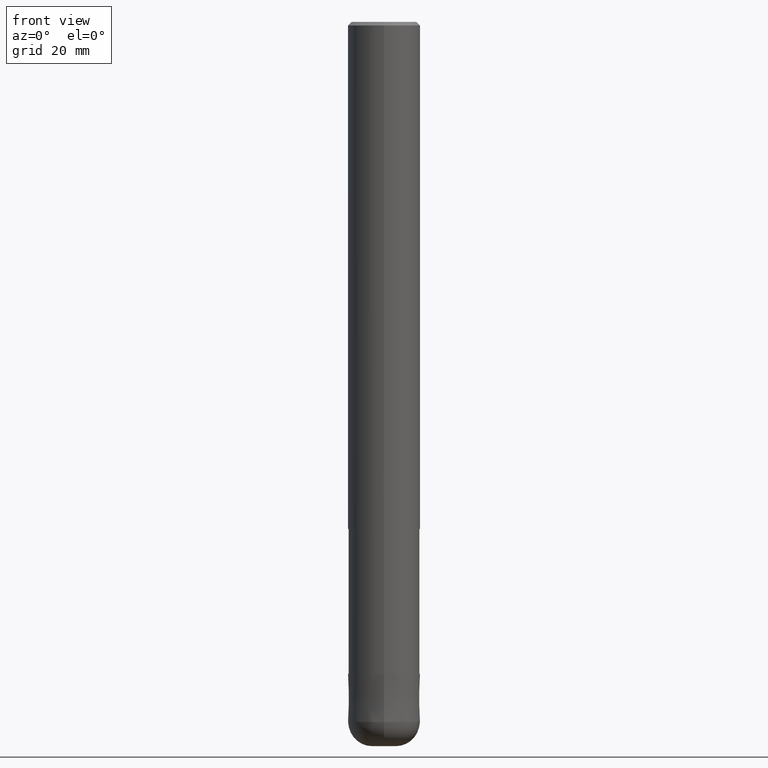
[diagram: clean part render]
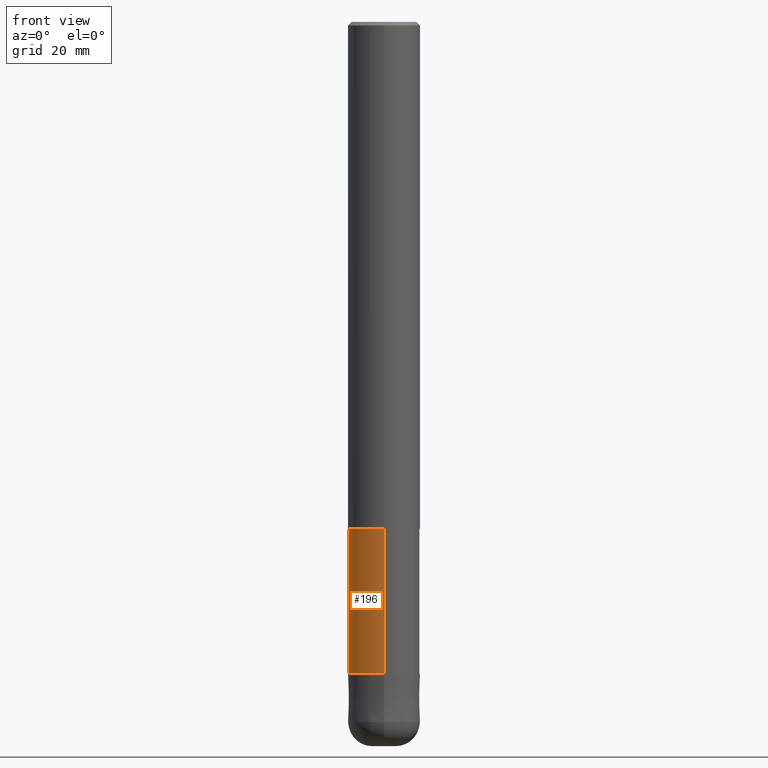
[diagram: same view with one face highlighted and labeled with its STEP entity id]
A machine part, front view. The second image highlights one B-rep face of the part: STEP entity #196.
In plain terms, the highlighted cylindrical surface (edge-blend (fillet) strip) has radius 5.91 mm, axis along (-0, -0, 1).
Its self-contained STEP definition (entity closure, byte-faithful):
#94=EDGE_CURVE('',#144,#208,#232,.T.);
#116=EDGE_CURVE('',#206,#174,#255,.T.);
#144=VERTEX_POINT('',#287);
#150=EDGE_CURVE('',#206,#144,#294,.T.);
#174=VERTEX_POINT('',#322);
#182=EDGE_CURVE('',#208,#174,#331,.T.);
#196=ADVANCED_FACE('',(#347),#348,.T.);
#206=VERTEX_POINT('',#359);
#208=VERTEX_POINT('',#361);
#232=CIRCLE('',#378,5.90995);
#255=CIRCLE('',#406,5.90995);
#287=CARTESIAN_POINT('',(7.23736232077256E-016,-5.90995,-84.0));
#294=LINE('',#455,#456);
#322=CARTESIAN_POINT('',(0.0,5.90995,-108.0));
#331=LINE('',#499,#500);
#347=FACE_OUTER_BOUND('',#520,.T.);
#348=CYLINDRICAL_SURFACE('',#521,5.90995);
#359=CARTESIAN_POINT('',(7.23736232077256E-016,-5.90995,-108.0));
#361=CARTESIAN_POINT('',(0.0,5.90995,-84.0));
#378=AXIS2_PLACEMENT_3D('',#546,#547,#548);
#406=AXIS2_PLACEMENT_3D('',#568,#569,#570);
#455=CARTESIAN_POINT('',(7.23736232077256E-016,-5.90995,-96.0));
#456=VECTOR('',#628,1.0);
#499=CARTESIAN_POINT('',(-7.23736232077256E-016,5.90995,-96.0));
#500=VECTOR('',#673,1.0);
#520=EDGE_LOOP('',(#696,#697,#698,#699));
#521=AXIS2_PLACEMENT_3D('',#700,#701,#702);
#546=CARTESIAN_POINT('',(0.0,0.0,-84.0));
#547=DIRECTION('',(0.0,0.0,-1.0));
#548=DIRECTION('',(0.0,1.0,0.0));
#568=CARTESIAN_POINT('',(0.0,0.0,-108.0));
#569=DIRECTION('',(0.0,0.0,-1.0));
#570=DIRECTION('',(0.0,1.0,0.0));
#628=DIRECTION('',(-0.0,-0.0,1.0));
#673=DIRECTION('',(0.0,0.0,-1.0));
#696=ORIENTED_EDGE('',*,*,#182,.T.);
#697=ORIENTED_EDGE('',*,*,#116,.F.);
#698=ORIENTED_EDGE('',*,*,#150,.T.);
#699=ORIENTED_EDGE('',*,*,#94,.T.);
#700=CARTESIAN_POINT('',(0.0,0.0,-96.0));
#701=DIRECTION('',(-0.0,-0.0,1.0));
#702=DIRECTION('',(0.0,1.0,0.0));